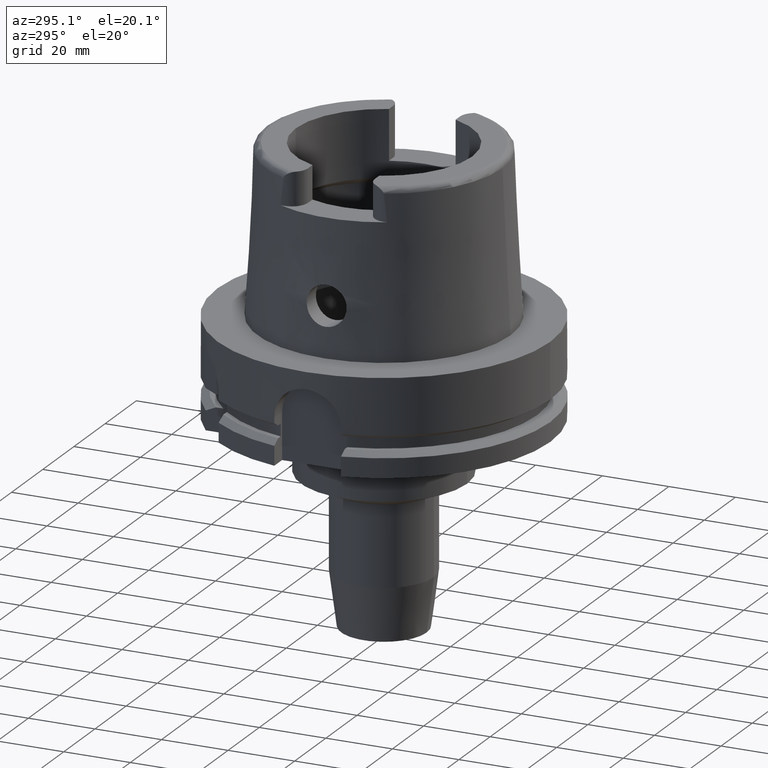
[diagram: clean part render]
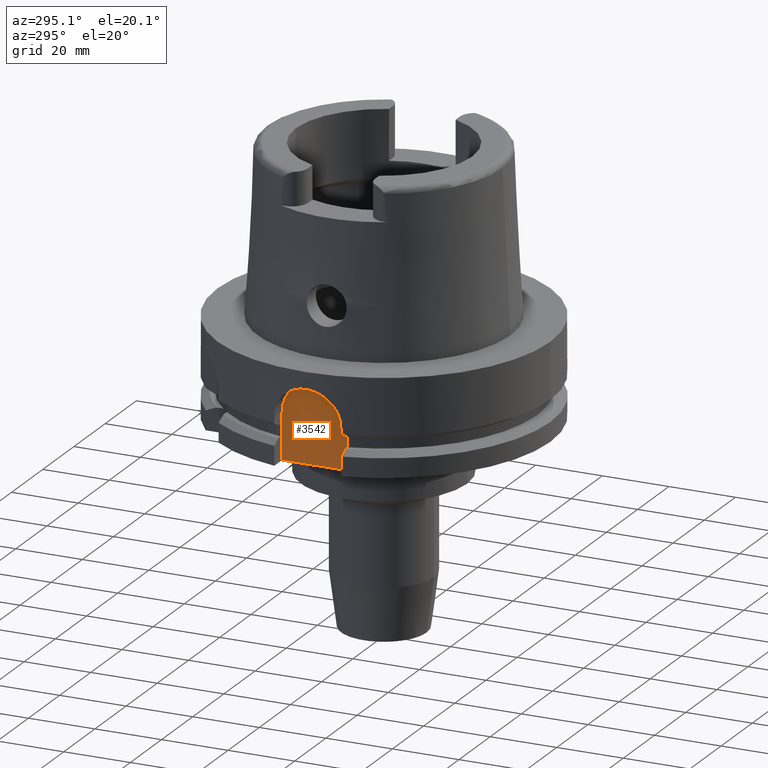
[diagram: same view with one face highlighted and labeled with its STEP entity id]
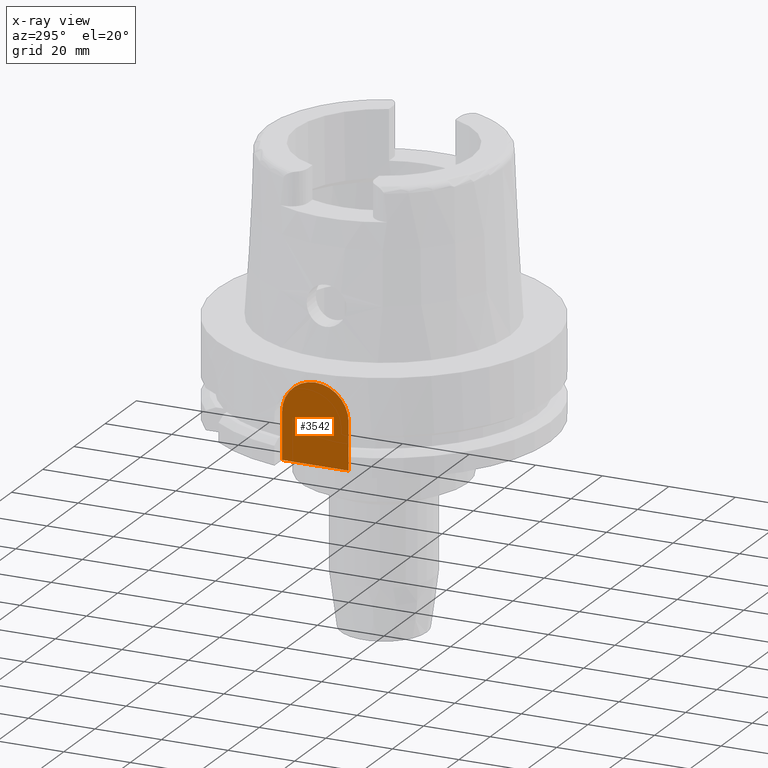
[diagram: x-ray of the same camera — body ghosted, the highlighted face saturated]
A machine part, auxiliary view. The second image highlights one B-rep face of the part: STEP entity #3542.
The next image is the same camera in x-ray: the body ghosted, the highlighted face saturated — about 0% of this face is hidden behind the body in this view.
In plain terms, the highlighted planar face has unit normal (1, 0, 0).
Its self-contained STEP definition (entity closure, byte-faithful):
#1355=DIRECTION('',(0.E0,0.E0,1.E0));
#1356=VECTOR('',#1355,1.4E1);
#1357=CARTESIAN_POINT('',(-4.4E1,-1.E1,-2.9E1));
#1358=LINE('',#1357,#1356);
#1369=DIRECTION('',(0.E0,1.E0,0.E0));
#1370=VECTOR('',#1369,2.E1);
#1371=CARTESIAN_POINT('',(-4.4E1,-1.E1,-2.9E1));
#1372=LINE('',#1371,#1370);
#1376=CARTESIAN_POINT('',(-4.4E1,0.E0,-1.5E1));
#1377=DIRECTION('',(1.E0,0.E0,0.E0));
#1378=DIRECTION('',(0.E0,1.E0,0.E0));
#1379=AXIS2_PLACEMENT_3D('',#1376,#1377,#1378);
#1384=CARTESIAN_POINT('',(-4.4E1,0.E0,-1.5E1));
#1385=DIRECTION('',(1.E0,0.E0,0.E0));
#1386=DIRECTION('',(0.E0,0.E0,1.E0));
#1387=AXIS2_PLACEMENT_3D('',#1384,#1385,#1386);
#1406=DIRECTION('',(0.E0,0.E0,-1.E0));
#1407=VECTOR('',#1406,1.4E1);
#1408=CARTESIAN_POINT('',(-4.4E1,1.E1,-1.5E1));
#1409=LINE('',#1408,#1407);
#2357=CARTESIAN_POINT('',(-4.4E1,1.E1,-2.9E1));
#2358=VERTEX_POINT('',#2357);
#2359=CARTESIAN_POINT('',(-4.4E1,-1.E1,-2.9E1));
#2360=VERTEX_POINT('',#2359);
#2403=CARTESIAN_POINT('',(-4.4E1,-1.E1,-1.5E1));
#2404=VERTEX_POINT('',#2403);
#2416=CARTESIAN_POINT('',(-4.4E1,1.E1,-1.5E1));
#2417=VERTEX_POINT('',#2416);
#2418=CARTESIAN_POINT('',(-4.4E1,0.E0,-5.E0));
#2419=VERTEX_POINT('',#2418);
#3527=CARTESIAN_POINT('',(-4.4E1,0.E0,0.E0));
#3528=DIRECTION('',(1.E0,0.E0,0.E0));
#3529=DIRECTION('',(0.E0,0.E0,1.E0));
#3530=AXIS2_PLACEMENT_3D('',#3527,#3528,#3529);
#3531=PLANE('',#3530);
#3532=ORIENTED_EDGE('',*,*,#3345,.T.);
#3534=ORIENTED_EDGE('',*,*,#3533,.F.);
#3536=ORIENTED_EDGE('',*,*,#3535,.T.);
#3538=ORIENTED_EDGE('',*,*,#3537,.T.);
#3539=ORIENTED_EDGE('',*,*,#3507,.F.);
#3540=EDGE_LOOP('',(#3532,#3534,#3536,#3538,#3539));
#3541=FACE_OUTER_BOUND('',#3540,.F.);
#1380=CIRCLE('',#1379,1.E1);
#1388=CIRCLE('',#1387,1.E1);
#3345=EDGE_CURVE('',#2360,#2358,#1372,.T.);
#3507=EDGE_CURVE('',#2360,#2404,#1358,.T.);
#3533=EDGE_CURVE('',#2417,#2358,#1409,.T.);
#3535=EDGE_CURVE('',#2417,#2419,#1380,.T.);
#3537=EDGE_CURVE('',#2419,#2404,#1388,.T.);
#3542=ADVANCED_FACE('',(#3541),#3531,.F.);